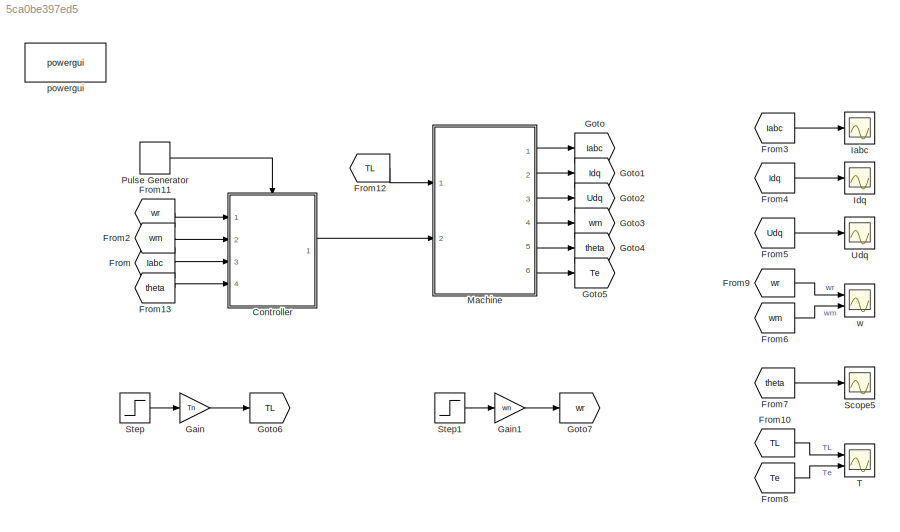
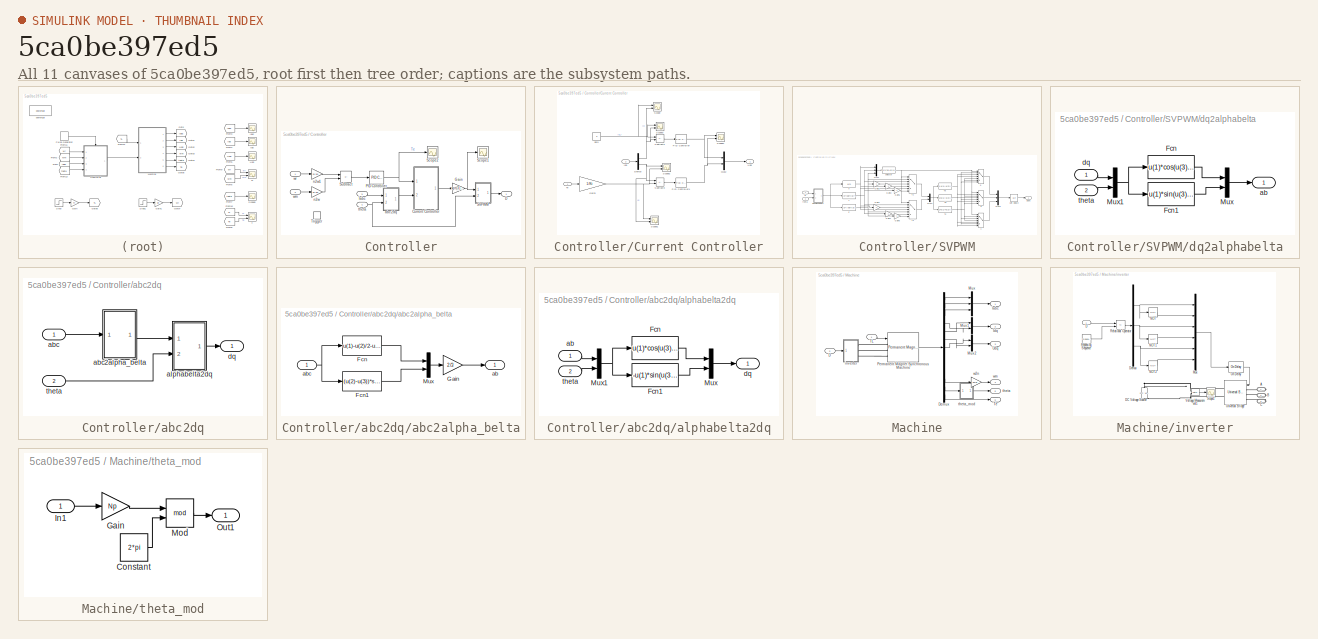
[diagram: thumbnail index - all 11 canvases of the model, root first then tree order]
MODEL slx_5ca0be397ed5
KIND model
CONFIG AbsTol = auto
CONFIG EnableMultiTasking = off
CONFIG FixedStep = auto
CONFIG MaxStep = 1e-6
CONFIG MinStep = auto
CONFIG RelTol = 1e-3
CONFIG SampleTimeConstraint = Unconstrained
CONFIG SolverName = ode45
CONFIG StartTime = 0.0
CONFIG StopTime = 1
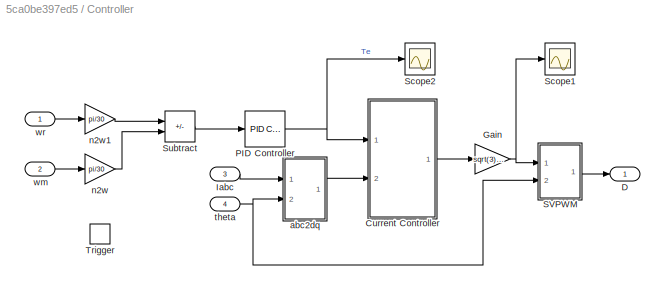
BLOCK [SubSystem] Controller
  Ports = [4, 1, 0, 1]
  RequestExecContextInheritance = off
  TreatAsAtomicUnit = on
BLOCK [SubSystem] Controller/Current Controller
  Ports = [2, 1]
  RequestExecContextInheritance = off
BLOCK [Demux] Controller/Current Controller/Demux
  Outputs = 2
  Ports = [1, 2]
BLOCK [Gain] Controller/Current Controller/Gain3
  Gain = 1/Kt
BLOCK [Inport] Controller/Current Controller/Idq
  Port = 2
BLOCK [Mux] Controller/Current Controller/Mux2
  DisplayOption = bar
  Inputs = 2
  Ports = [2, 1]
BLOCK [Reference] Controller/Current Controller/PID Controller  REF=pid_lib/PID Controller
  Ports = [1, 1]
  SourceBlock = pid_lib/PID Controller
  SourceProductBaseCode = SL
  SourceType = PID 1dof
BLOCK [Reference] Controller/Current Controller/PID Controller1  REF=pid_lib/PID Controller
  Ports = [1, 1]
  SourceBlock = pid_lib/PID Controller
  SourceProductBaseCode = SL
  SourceType = PID 1dof
BLOCK [Scope] Controller/Current Controller/Scope
  Floating = off
  NumInputPorts = 2
  Ports = [2]
  ScopeSpecificationString = Simulink.scopes.TimeScopeBlockCfg('CurrentConfiguration', extmgr.ConfigurationSet(extmgr.Configuration('Core','General UI',true),extmgr.Configuration('Core','Source UI',true),extmgr.Configuration('Sources','WiredSimulink',true,'DataLoggingVariableName','ScopeData7'),extmgr.Configuration('Visuals','Time Domain',true,'SerializedDisplays',{struct('MinYLimReal','-1.29966','MaxYLimReal','1.31839','YLab...<+1582ch>
BLOCK [Scope] Controller/Current Controller/Scope1
  Floating = off
  NumInputPorts = 2
  Ports = [2]
  ScopeSpecificationString = Simulink.scopes.TimeScopeBlockCfg('CurrentConfiguration', extmgr.ConfigurationSet(extmgr.Configuration('Core','General UI',true),extmgr.Configuration('Core','Source UI',true),extmgr.Configuration('Sources','WiredSimulink',true,'DataLoggingVariableName','ScopeData8'),extmgr.Configuration('Visuals','Time Domain',true,'SerializedDisplays',{struct('MinYLimReal','-0.53132','MaxYLimReal','4.54088','YLab...<+1516ch>
BLOCK [Scope] Controller/Current Controller/Scope2
  Floating = off
  NumInputPorts = 2
  Ports = [2]
  ScopeSpecificationString = Simulink.scopes.TimeScopeBlockCfg('CurrentConfiguration', extmgr.ConfigurationSet(extmgr.Configuration('Core','General UI',true),extmgr.Configuration('Core','Source UI',true),extmgr.Configuration('Sources','WiredSimulink',true,'DataLoggingVariableName','ScopeData1'),extmgr.Configuration('Visuals','Time Domain',true,'SerializedDisplays',{struct('MinYLimReal','-0.46814','MaxYLimReal','4.0084','YLabe...<+1385ch>
BLOCK [Scope] Controller/Current Controller/Scope3
  Floating = off
  NumInputPorts = 2
  Ports = [2]
  ScopeSpecificationString = Simulink.scopes.TimeScopeBlockCfg('CurrentConfiguration', extmgr.ConfigurationSet(extmgr.Configuration('Core','General UI',true),extmgr.Configuration('Core','Source UI',true),extmgr.Configuration('Sources','WiredSimulink',true,'DataLoggingVariableName','ScopeData2'),extmgr.Configuration('Visuals','Time Domain',true,'SerializedDisplays',{struct('MinYLimReal','-1.15387','MaxYLimReal','1.22403','YLab...<+1392ch>
BLOCK [Scope] Controller/Current Controller/Scope4
  Floating = off
  NumInputPorts = 2
  Ports = [2]
  ScopeSpecificationString = Simulink.scopes.TimeScopeBlockCfg('CurrentConfiguration', extmgr.ConfigurationSet(extmgr.Configuration('Core','General UI',true),extmgr.Configuration('Core','Source UI',true),extmgr.Configuration('Sources','WiredSimulink',true,'DataLoggingVariableName','ScopeData3'),extmgr.Configuration('Visuals','Time Domain',true,'SerializedDisplays',{struct('MinYLimReal','-233.56831','MaxYLimReal','483.02584','...<+1478ch>
BLOCK [Sum] Controller/Current Controller/Subtract2
  IconShape = rectangular
  Inputs = +-
  Ports = [2, 1]
BLOCK [Sum] Controller/Current Controller/Subtract3
  IconShape = rectangular
  Inputs = -+
  Ports = [2, 1]
BLOCK [Inport] Controller/Current Controller/Te
BLOCK [Outport] Controller/Current Controller/Udq
  VectorParamsAs1DForOutWhenUnconnected = off
BLOCK [Constant] Controller/Current Controller/Zero
  Value = 0
BLOCK [Outport] Controller/D
  VectorParamsAs1DForOutWhenUnconnected = off
BLOCK [Gain] Controller/Gain
  Gain = sqrt(3)/Udc
BLOCK [Inport] Controller/Iabc
  Port = 3
BLOCK [Reference] Controller/PID Controller  REF=pid_lib/PID Controller
  Ports = [1, 1]
  SourceBlock = pid_lib/PID Controller
  SourceProductBaseCode = SL
  SourceType = PID 1dof
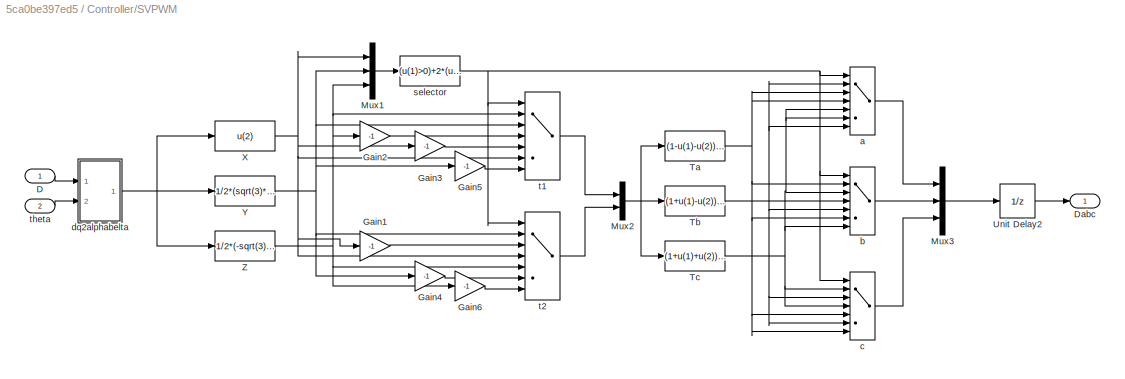
BLOCK [SubSystem] Controller/SVPWM
  Ports = [2, 1]
  RequestExecContextInheritance = off
BLOCK [Inport] Controller/SVPWM/D
BLOCK [Outport] Controller/SVPWM/Dabc
  VectorParamsAs1DForOutWhenUnconnected = off
BLOCK [Gain] Controller/SVPWM/Gain1
  Gain = -1
BLOCK [Gain] Controller/SVPWM/Gain2
  Gain = -1
BLOCK [Gain] Controller/SVPWM/Gain3
  Gain = -1
BLOCK [Gain] Controller/SVPWM/Gain4
  Gain = -1
BLOCK [Gain] Controller/SVPWM/Gain5
  Gain = -1
BLOCK [Gain] Controller/SVPWM/Gain6
  Gain = -1
BLOCK [Mux] Controller/SVPWM/Mux1
  DisplayOption = bar
  Inputs = 3
  Ports = [3, 1]
BLOCK [Mux] Controller/SVPWM/Mux2
  DisplayOption = bar
  Inputs = 2
  Ports = [2, 1]
BLOCK [Mux] Controller/SVPWM/Mux3
  DisplayOption = bar
  Inputs = 3
  Ports = [3, 1]
BLOCK [Fcn] Controller/SVPWM/Ta
  Expr = (1-u(1)-u(2))/2
BLOCK [Fcn] Controller/SVPWM/Tb
  Expr = (1+u(1)-u(2))/2
BLOCK [Fcn] Controller/SVPWM/Tc
  Expr = (1+u(1)+u(2))/2
BLOCK [UnitDelay] Controller/SVPWM/Unit Delay2
  HasFrameUpgradeWarning = on
  SampleTime = -1
BLOCK [Fcn] Controller/SVPWM/X
  Expr = u(2)
BLOCK [Fcn] Controller/SVPWM/Y
  Expr = 1/2*(sqrt(3)*u(1)+u(2))
BLOCK [Fcn] Controller/SVPWM/Z
  Expr = 1/2*(-sqrt(3)*u(1)+u(2))
BLOCK [MultiPortSwitch] Controller/SVPWM/a
  InputSameDT = off
  Inputs = 6
  Ports = [7, 1]
  SaturateOnIntegerOverflow = off
BLOCK [MultiPortSwitch] Controller/SVPWM/b
  InputSameDT = off
  Inputs = 6
  Ports = [7, 1]
  SaturateOnIntegerOverflow = off
BLOCK [MultiPortSwitch] Controller/SVPWM/c
  InputSameDT = off
  Inputs = 6
  Ports = [7, 1]
  SaturateOnIntegerOverflow = off
BLOCK [SubSystem] Controller/SVPWM/dq2alphabelta
  Ports = [2, 1]
  RequestExecContextInheritance = off
BLOCK [Fcn] Controller/SVPWM/dq2alphabelta/Fcn
  Expr = u(1)*cos(u(3))-u(2)*sin(u(3))
BLOCK [Fcn] Controller/SVPWM/dq2alphabelta/Fcn1
  Expr = u(1)*sin(u(3))+u(2)*cos(u(3))
BLOCK [Mux] Controller/SVPWM/dq2alphabelta/Mux
  DisplayOption = bar
  Inputs = 2
  Ports = [2, 1]
BLOCK [Mux] Controller/SVPWM/dq2alphabelta/Mux1
  DisplayOption = bar
  Inputs = 2
  Ports = [2, 1]
BLOCK [Outport] Controller/SVPWM/dq2alphabelta/ab
  VectorParamsAs1DForOutWhenUnconnected = off
BLOCK [Inport] Controller/SVPWM/dq2alphabelta/dq
BLOCK [Inport] Controller/SVPWM/dq2alphabelta/theta
  Port = 2
BLOCK [Fcn] Controller/SVPWM/selector
  Expr = (u(1)>0)+2*(u(3)<=0)+4*(u(2)<=0)
BLOCK [MultiPortSwitch] Controller/SVPWM/t1
  InputSameDT = off
  Inputs = 6
  Ports = [7, 1]
  SaturateOnIntegerOverflow = off
BLOCK [MultiPortSwitch] Controller/SVPWM/t2
  InputSameDT = off
  Inputs = 6
  Ports = [7, 1]
  SaturateOnIntegerOverflow = off
BLOCK [Inport] Controller/SVPWM/theta
  Port = 2
BLOCK [Scope] Controller/Scope1
  Floating = off
  NumInputPorts = 1
  Ports = [1]
  ScopeSpecificationString = Simulink.scopes.TimeScopeBlockCfg('CurrentConfiguration', extmgr.ConfigurationSet(extmgr.Configuration('Core','General UI',true),extmgr.Configuration('Core','Source UI',true),extmgr.Configuration('Sources','WiredSimulink',true,'DataLoggingVariableName','ScopeData3'),extmgr.Configuration('Visuals','Time Domain',true,'SerializedDisplays',{struct('MinYLimReal','-0.74917','MaxYLimReal','1.54931','YLab...<+1477ch>
BLOCK [Scope] Controller/Scope2
  Floating = off
  NumInputPorts = 1
  Ports = [1]
  ScopeSpecificationString = Simulink.scopes.TimeScopeBlockCfg('CurrentConfiguration', extmgr.ConfigurationSet(extmgr.Configuration('Core','General UI',true),extmgr.Configuration('Core','Source UI',true),extmgr.Configuration('Sources','WiredSimulink',true,'DataLoggingVariableName','ScopeData1'),extmgr.Configuration('Visuals','Time Domain',true,'SerializedDisplays',{struct('MinYLimReal','-1.36016','MaxYLimReal','11.92863','YLa...<+1467ch>
BLOCK [Sum] Controller/Subtract
  IconShape = rectangular
  Inputs = +-
  Ports = [2, 1]
BLOCK [TriggerPort] Controller/Trigger
  Ports = []
  StatesWhenEnabling = held
  VariantControl = Variant
BLOCK [SubSystem] Controller/abc2dq
  Ports = [2, 1]
  RequestExecContextInheritance = off
BLOCK [Inport] Controller/abc2dq/abc
BLOCK [SubSystem] Controller/abc2dq/abc2alpha_belta
  Ports = [1, 1]
  RequestExecContextInheritance = off
BLOCK [Fcn] Controller/abc2dq/abc2alpha_belta/Fcn
  Expr = u(1)-u(2)/2-u(3)/2
BLOCK [Fcn] Controller/abc2dq/abc2alpha_belta/Fcn1
  Expr = (u(2)-u(3))*sqrt(3)/2
BLOCK [Gain] Controller/abc2dq/abc2alpha_belta/Gain
  Gain = 2/3
BLOCK [Mux] Controller/abc2dq/abc2alpha_belta/Mux
  DisplayOption = bar
  Inputs = 2
  Ports = [2, 1]
BLOCK [Outport] Controller/abc2dq/abc2alpha_belta/ab
  VectorParamsAs1DForOutWhenUnconnected = off
BLOCK [Inport] Controller/abc2dq/abc2alpha_belta/abc
BLOCK [SubSystem] Controller/abc2dq/alphabelta2dq
  Ports = [2, 1]
  RequestExecContextInheritance = off
BLOCK [Fcn] Controller/abc2dq/alphabelta2dq/Fcn
  Expr = u(1)*cos(u(3))+u(2)*sin(u(3))
BLOCK [Fcn] Controller/abc2dq/alphabelta2dq/Fcn1
  Expr = -u(1)*sin(u(3))+u(2)*cos(u(3))
BLOCK [Mux] Controller/abc2dq/alphabelta2dq/Mux
  DisplayOption = bar
  Inputs = 2
  Ports = [2, 1]
BLOCK [Mux] Controller/abc2dq/alphabelta2dq/Mux1
  DisplayOption = bar
  Inputs = 2
  Ports = [2, 1]
BLOCK [Inport] Controller/abc2dq/alphabelta2dq/ab
BLOCK [Outport] Controller/abc2dq/alphabelta2dq/dq
  VectorParamsAs1DForOutWhenUnconnected = off
BLOCK [Inport] Controller/abc2dq/alphabelta2dq/theta
  Port = 2
BLOCK [Outport] Controller/abc2dq/dq
  VectorParamsAs1DForOutWhenUnconnected = off
BLOCK [Inport] Controller/abc2dq/theta
  Port = 2
BLOCK [Gain] Controller/n2w
  Gain = pi/30
BLOCK [Gain] Controller/n2w1
  Gain = pi/30
BLOCK [Inport] Controller/theta
  Port = 4
BLOCK [Inport] Controller/wm
  Port = 2
BLOCK [Inport] Controller/wr
BLOCK [From] From
  GotoTag = Iabc
BLOCK [From] From10
  GotoTag = TL
  TagVisibility = global
BLOCK [From] From11
  GotoTag = wr
  TagVisibility = global
BLOCK [From] From12
  GotoTag = TL
  TagVisibility = global
BLOCK [From] From13
  GotoTag = theta
BLOCK [From] From2
  GotoTag = wm
BLOCK [From] From3
  GotoTag = Iabc
BLOCK [From] From4
  GotoTag = Idq
BLOCK [From] From5
  GotoTag = Udq
BLOCK [From] From6
  GotoTag = wm
BLOCK [From] From7
  GotoTag = theta
BLOCK [From] From8
  GotoTag = Te
BLOCK [From] From9
  GotoTag = wr
  TagVisibility = global
BLOCK [Gain] Gain
  Gain = Tn
BLOCK [Gain] Gain1
  Gain = wn
BLOCK [Goto] Goto
  GotoTag = Iabc
BLOCK [Goto] Goto1
  GotoTag = Idq
BLOCK [Goto] Goto2
  GotoTag = Udq
BLOCK [Goto] Goto3
  GotoTag = wm
BLOCK [Goto] Goto4
  GotoTag = theta
BLOCK [Goto] Goto5
  GotoTag = Te
BLOCK [Goto] Goto6
  GotoTag = TL
  TagVisibility = global
BLOCK [Goto] Goto7
  GotoTag = wr
  TagVisibility = global
BLOCK [Scope] Iabc
  Floating = off
  NumInputPorts = 1
  Ports = [1]
  ScopeSpecificationString = Simulink.scopes.TimeScopeBlockCfg('CurrentConfiguration', extmgr.ConfigurationSet(extmgr.Configuration('Core','General UI',true),extmgr.Configuration('Core','Source UI',true),extmgr.Configuration('Sources','WiredSimulink',true),extmgr.Configuration('Visuals','Time Domain',true,'SerializedDisplays',{struct('MinYLimReal','-3.48459','MaxYLimReal','3.48038','YLabelReal','','MinYLimMag','0.00000','MaxY...<+1459ch>
BLOCK [Scope] Idq
  Floating = off
  NumInputPorts = 1
  Ports = [1]
  ScopeSpecificationString = Simulink.scopes.TimeScopeBlockCfg('CurrentConfiguration', extmgr.ConfigurationSet(extmgr.Configuration('Core','General UI',true),extmgr.Configuration('Core','Source UI',true),extmgr.Configuration('Sources','WiredSimulink',true,'DataLoggingVariableName','ScopeData1'),extmgr.Configuration('Visuals','Time Domain',true,'SerializedDisplays',{struct('MinYLimReal','-0.03243','MaxYLimReal','0.02372','YLab...<+1545ch>
BLOCK [SubSystem] Machine
  Ports = [2, 6]
  RequestExecContextInheritance = off
BLOCK [Inport] Machine/D
  Port = 2
BLOCK [Demux] Machine/Demux
  Outputs = 13
  Ports = [1, 13]
BLOCK [Outport] Machine/Iabc
  VectorParamsAs1DForOutWhenUnconnected = off
BLOCK [Outport] Machine/Idq
  Port = 2
  VectorParamsAs1DForOutWhenUnconnected = off
BLOCK [Mux] Machine/Mux
  DisplayOption = bar
  Inputs = 3
  Ports = [3, 1]
BLOCK [Mux] Machine/Mux1
  DisplayOption = bar
  Inputs = 2
  Ports = [2, 1]
BLOCK [Mux] Machine/Mux2
  DisplayOption = bar
  Inputs = 2
  Ports = [2, 1]
BLOCK [Reference] Machine/Permanent Magnet Synchronous Machine  REF=powerlib/Machines/Permanent Magnet
Synchronous Machine
  Ports = [1, 1, 0, 0, 0, 3]
  SourceBlock = powerlib/Machines/Permanent Magnet\nSynchronous Machine
  SourceProductBaseCode = PS
  SourceType = Permanent Magnet Synchronous Machine
BLOCK [Inport] Machine/TL
BLOCK [Outport] Machine/Te
  Port = 6
  VectorParamsAs1DForOutWhenUnconnected = off
BLOCK [Outport] Machine/Udq
  Port = 3
  VectorParamsAs1DForOutWhenUnconnected = off
BLOCK [SubSystem] Machine/inverter
  Ports = [1, 0, 0, 0, 0, 0, 3]
  RequestExecContextInheritance = off
BLOCK [PMIOPort] Machine/inverter/A
  Side = Right
BLOCK [PMIOPort] Machine/inverter/B
  Port = 2
  Side = Right
BLOCK [PMIOPort] Machine/inverter/C
  Port = 3
  Side = Right
BLOCK [Inport] Machine/inverter/D
BLOCK [Reference] Machine/inverter/DC Voltage Source  REF=powerlib/Electrical
Sources/DC Voltage Source
  NameLocation = right
  Ports = [0, 0, 0, 0, 0, 1, 1]
  SourceBlock = powerlib/Electrical\nSources/DC Voltage Source
  SourceProductBaseCode = PS
  SourceType = DC Voltage Source
BLOCK [Demux] Machine/inverter/Demux
  Outputs = 3
  Ports = [1, 3]
BLOCK [Mux] Machine/inverter/Mux
  DisplayOption = bar
  Inputs = 6
  Ports = [6, 1]
BLOCK [Logic] Machine/inverter/NOT
  AllPortsSameDT = off
  IconShape = distinctive
  Operator = NOT
  OutDataTypeStr = boolean
  Ports = [1, 1]
BLOCK [Logic] Machine/inverter/NOT1
  AllPortsSameDT = off
  IconShape = distinctive
  Operator = NOT
  OutDataTypeStr = boolean
  Ports = [1, 1]
BLOCK [Logic] Machine/inverter/NOT2
  AllPortsSameDT = off
  IconShape = distinctive
  Operator = NOT
  OutDataTypeStr = boolean
  Ports = [1, 1]
BLOCK [Reference] Machine/inverter/On Delay  REF=powerlib_meascontrol/Logic/On Delay
  Ports = [1, 1]
  SourceBlock = powerlib_meascontrol/Logic/On Delay
  SourceProductBaseCode = PS
  SourceType = On/Off Delay
BLOCK [RelationalOperator] Machine/inverter/Relational Operator
  InputSameDT = off
  Operator = <=
  OutDataTypeStr = boolean
  Ports = [2, 1]
  RndMeth = Simplest
BLOCK [Reference] Machine/inverter/Repeating Sequence  REF=simulink/Sources/Repeating
Sequence
  Ports = [0, 1]
  SourceBlock = simulink/Sources/Repeating\nSequence
  SourceProductBaseCode = SL
  SourceType = Repeating table
BLOCK [Scope] Machine/inverter/Scope1
  Floating = off
  NumInputPorts = 1
  Ports = [1]
  ScopeSpecificationString = Simulink.scopes.TimeScopeBlockCfg('CurrentConfiguration', extmgr.ConfigurationSet(extmgr.Configuration('Core','General UI',true),extmgr.Configuration('Core','Source UI',true),extmgr.Configuration('Sources','WiredSimulink',true,'DataLoggingVariableName','ScopeData1'),extmgr.Configuration('Visuals','Time Domain',true,'SerializedDisplays',{struct('MinYLimReal','-31.67772','MaxYLimReal','601.21776','Y...<+1489ch>
BLOCK [Reference] Machine/inverter/Universal Bridge  REF=powerlib/Power
Electronics/Universal Bridge
  Ports = [1, 0, 0, 0, 0, 3, 2]
  SourceBlock = powerlib/Power\nElectronics/Universal Bridge
  SourceProductBaseCode = PS
  SourceType = Universal Bridge
BLOCK [Reference] Machine/inverter/Voltage Measurement1  REF=powerlib/Measurements/Voltage Measurement
  Ports = [0, 1, 0, 0, 0, 2]
  SourceBlock = powerlib/Measurements/Voltage Measurement
  SourceProductBaseCode = PS
  SourceType = Voltage Measurement
  UserDataPersistent = on
BLOCK [Outport] Machine/theta
  Port = 5
  VectorParamsAs1DForOutWhenUnconnected = off
BLOCK [SubSystem] Machine/theta_mod
  Ports = [1, 1]
  RequestExecContextInheritance = off
BLOCK [Constant] Machine/theta_mod/Constant
  Value = 2*pi
BLOCK [Gain] Machine/theta_mod/Gain
  Gain = Np
BLOCK [Inport] Machine/theta_mod/In1
BLOCK [Math] Machine/theta_mod/Mod
  Operator = mod
  Ports = [2, 1]
  SignedPower = on
BLOCK [Outport] Machine/theta_mod/Out1
  VectorParamsAs1DForOutWhenUnconnected = off
BLOCK [Gain] Machine/w2n
  Gain = 30/pi
BLOCK [Outport] Machine/wm
  Port = 4
  VectorParamsAs1DForOutWhenUnconnected = off
BLOCK [DiscretePulseGenerator] Pulse Generator
  Period = Ts
  Ports = [0, 1]
  PulseType = Time based
  PulseWidth = 50
BLOCK [Scope] Scope5
  Floating = off
  NumInputPorts = 1
  Ports = [1]
  ScopeSpecificationString = Simulink.scopes.TimeScopeBlockCfg('CurrentConfiguration', extmgr.ConfigurationSet(extmgr.Configuration('Core','General UI',true),extmgr.Configuration('Core','Source UI',true),extmgr.Configuration('Sources','WiredSimulink',true,'DataLoggingVariableName','ScopeData6'),extmgr.Configuration('Visuals','Time Domain',true,'SerializedDisplays',{struct('MinYLimReal','-0.7854','MaxYLimReal','7.06858','YLabe...<+1466ch>
BLOCK [Step] Step
  SampleTime = 0
  Time = 0.5
BLOCK [Step] Step1
  SampleTime = 0
  Time = 0
BLOCK [Scope] T
  Floating = off
  NumInputPorts = 2
  Ports = [2]
  ScopeSpecificationString = Simulink.scopes.TimeScopeBlockCfg('CurrentConfiguration', extmgr.ConfigurationSet(extmgr.Configuration('Core','General UI',true),extmgr.Configuration('Core','Source UI',true),extmgr.Configuration('Sources','WiredSimulink',true,'DataLoggingVariableName','ScopeData5'),extmgr.Configuration('Visuals','Time Domain',true,'SerializedDisplays',{struct('MinYLimReal','-17.09595','MaxYLimReal','15.58491','YL...<+1568ch>
BLOCK [Scope] Udq
  Floating = off
  NumInputPorts = 1
  Ports = [1]
  ScopeSpecificationString = Simulink.scopes.TimeScopeBlockCfg('CurrentConfiguration', extmgr.ConfigurationSet(extmgr.Configuration('Core','General UI',true),extmgr.Configuration('Core','Source UI',true),extmgr.Configuration('Sources','WiredSimulink',true,'DataLoggingVariableName','ScopeData2'),extmgr.Configuration('Visuals','Time Domain',true,'SerializedDisplays',{struct('MinYLimReal','-415.6232','MaxYLimReal','419.10198','Y...<+1530ch>
BLOCK [Reference] powergui  REF=powerlib/powergui
  Ports = []
  Priority = 1
  SourceBlock = powerlib/powergui
  SourceProductBaseCode = PS
  SourceType = PSB option menu block
BLOCK [Scope] w
  Floating = off
  NumInputPorts = 2
  Ports = [2]
  ScopeSpecificationString = Simulink.scopes.TimeScopeBlockCfg('CurrentConfiguration', extmgr.ConfigurationSet(extmgr.Configuration('Core','General UI',true),extmgr.Configuration('Core','Source UI',true),extmgr.Configuration('Sources','WiredSimulink',true,'DataLoggingVariableName','ScopeData3'),extmgr.Configuration('Visuals','Time Domain',true,'SerializedDisplays',{struct('MinYLimReal','-1.83778','MaxYLimReal','16.54001','YLa...<+1590ch>
NET Controller/Current Controller/Demux:1 -> Controller/Current Controller/Scope3:2, Controller/Current Controller/Scope:2, Controller/Current Controller/Subtract2:2
NET Controller/Current Controller/Demux:2 -> Controller/Current Controller/Scope1:2, Controller/Current Controller/Scope2:1, Controller/Current Controller/Subtract3:1
NET Controller/Current Controller/Gain3:1 -> Controller/Current Controller/Scope1:1, Controller/Current Controller/Scope2:2, Controller/Current Controller/Subtract3:2
LINE Controller/Current Controller/Idq:1 -> Controller/Current Controller/Demux:1
LINE Controller/Current Controller/Mux2:1 -> Controller/Current Controller/Udq:1
NET Controller/Current Controller/PID Controller1:1 -> Controller/Current Controller/Mux2:2, Controller/Current Controller/Scope4:2
NET Controller/Current Controller/PID Controller:1 -> Controller/Current Controller/Mux2:1, Controller/Current Controller/Scope4:1
LINE Controller/Current Controller/Subtract2:1 -> Controller/Current Controller/PID Controller:1
LINE Controller/Current Controller/Subtract3:1 -> Controller/Current Controller/PID Controller1:1
LINE Controller/Current Controller/Te:1 -> Controller/Current Controller/Gain3:1
NET Controller/Current Controller/Zero:1 -> Controller/Current Controller/Scope3:1, Controller/Current Controller/Scope:1, Controller/Current Controller/Subtract2:1
LINE Controller/Current Controller:1 -> Controller/Gain:1
NET Controller/Gain:1 -> Controller/SVPWM:1, Controller/Scope1:1
LINE Controller/Iabc:1 -> Controller/abc2dq:1
NET Controller/PID Controller:1 -> Controller/Current Controller:1, Controller/Scope2:1
LINE Controller/SVPWM/D:1 -> Controller/SVPWM/dq2alphabelta:1
LINE Controller/SVPWM/Gain1:1 -> Controller/SVPWM/t2:3
LINE Controller/SVPWM/Gain2:1 -> Controller/SVPWM/t1:4
LINE Controller/SVPWM/Gain3:1 -> Controller/SVPWM/t1:5
LINE Controller/SVPWM/Gain4:1 -> Controller/SVPWM/t2:6
LINE Controller/SVPWM/Gain5:1 -> Controller/SVPWM/t1:7
LINE Controller/SVPWM/Gain6:1 -> Controller/SVPWM/t2:7
LINE Controller/SVPWM/Mux1:1 -> Controller/SVPWM/selector:1
NET Controller/SVPWM/Mux2:1 -> Controller/SVPWM/Ta:1, Controller/SVPWM/Tb:1, Controller/SVPWM/Tc:1
LINE Controller/SVPWM/Mux3:1 -> Controller/SVPWM/Unit Delay2:1
NET Controller/SVPWM/Ta:1 -> Controller/SVPWM/a:3, Controller/SVPWM/a:4, Controller/SVPWM/b:2, Controller/SVPWM/b:6, Controller/SVPWM/c:5, Controller/SVPWM/c:7
NET Controller/SVPWM/Tb:1 -> Controller/SVPWM/a:2, Controller/SVPWM/a:7, Controller/SVPWM/b:4, Controller/SVPWM/b:5, Controller/SVPWM/c:3, Controller/SVPWM/c:6
NET Controller/SVPWM/Tc:1 -> Controller/SVPWM/a:5, Controller/SVPWM/a:6, Controller/SVPWM/b:3, Controller/SVPWM/b:7, Controller/SVPWM/c:2, Controller/SVPWM/c:4
LINE Controller/SVPWM/Unit Delay2:1 -> Controller/SVPWM/Dabc:1
NET Controller/SVPWM/X:1 -> Controller/SVPWM/Gain1:1, Controller/SVPWM/Gain3:1, Controller/SVPWM/Mux1:1, Controller/SVPWM/t1:6, Controller/SVPWM/t2:4
NET Controller/SVPWM/Y:1 -> Controller/SVPWM/Gain4:1, Controller/SVPWM/Gain5:1, Controller/SVPWM/Mux1:2, Controller/SVPWM/t1:3, Controller/SVPWM/t2:2
NET Controller/SVPWM/Z:1 -> Controller/SVPWM/Gain2:1, Controller/SVPWM/Gain6:1, Controller/SVPWM/Mux1:3, Controller/SVPWM/t1:2, Controller/SVPWM/t2:5
LINE Controller/SVPWM/a:1 -> Controller/SVPWM/Mux3:1
LINE Controller/SVPWM/b:1 -> Controller/SVPWM/Mux3:2
LINE Controller/SVPWM/c:1 -> Controller/SVPWM/Mux3:3
LINE Controller/SVPWM/dq2alphabelta/Fcn1:1 -> Controller/SVPWM/dq2alphabelta/Mux:2
LINE Controller/SVPWM/dq2alphabelta/Fcn:1 -> Controller/SVPWM/dq2alphabelta/Mux:1
NET Controller/SVPWM/dq2alphabelta/Mux1:1 -> Controller/SVPWM/dq2alphabelta/Fcn1:1, Controller/SVPWM/dq2alphabelta/Fcn:1
LINE Controller/SVPWM/dq2alphabelta/Mux:1 -> Controller/SVPWM/dq2alphabelta/ab:1
LINE Controller/SVPWM/dq2alphabelta/dq:1 -> Controller/SVPWM/dq2alphabelta/Mux1:1
LINE Controller/SVPWM/dq2alphabelta/theta:1 -> Controller/SVPWM/dq2alphabelta/Mux1:2
NET Controller/SVPWM/dq2alphabelta:1 -> Controller/SVPWM/X:1, Controller/SVPWM/Y:1, Controller/SVPWM/Z:1
NET Controller/SVPWM/selector:1 -> Controller/SVPWM/a:1, Controller/SVPWM/b:1, Controller/SVPWM/c:1, Controller/SVPWM/t1:1, Controller/SVPWM/t2:1
LINE Controller/SVPWM/t1:1 -> Controller/SVPWM/Mux2:1
LINE Controller/SVPWM/t2:1 -> Controller/SVPWM/Mux2:2
LINE Controller/SVPWM/theta:1 -> Controller/SVPWM/dq2alphabelta:2
LINE Controller/SVPWM:1 -> Controller/D:1
LINE Controller/Subtract:1 -> Controller/PID Controller:1
LINE Controller/abc2dq/abc2alpha_belta/Fcn1:1 -> Controller/abc2dq/abc2alpha_belta/Mux:2
LINE Controller/abc2dq/abc2alpha_belta/Fcn:1 -> Controller/abc2dq/abc2alpha_belta/Mux:1
LINE Controller/abc2dq/abc2alpha_belta/Gain:1 -> Controller/abc2dq/abc2alpha_belta/ab:1
LINE Controller/abc2dq/abc2alpha_belta/Mux:1 -> Controller/abc2dq/abc2alpha_belta/Gain:1
NET Controller/abc2dq/abc2alpha_belta/abc:1 -> Controller/abc2dq/abc2alpha_belta/Fcn1:1, Controller/abc2dq/abc2alpha_belta/Fcn:1
LINE Controller/abc2dq/abc2alpha_belta:1 -> Controller/abc2dq/alphabelta2dq:1
LINE Controller/abc2dq/abc:1 -> Controller/abc2dq/abc2alpha_belta:1
LINE Controller/abc2dq/alphabelta2dq/Fcn1:1 -> Controller/abc2dq/alphabelta2dq/Mux:2
LINE Controller/abc2dq/alphabelta2dq/Fcn:1 -> Controller/abc2dq/alphabelta2dq/Mux:1
NET Controller/abc2dq/alphabelta2dq/Mux1:1 -> Controller/abc2dq/alphabelta2dq/Fcn1:1, Controller/abc2dq/alphabelta2dq/Fcn:1
LINE Controller/abc2dq/alphabelta2dq/Mux:1 -> Controller/abc2dq/alphabelta2dq/dq:1
LINE Controller/abc2dq/alphabelta2dq/ab:1 -> Controller/abc2dq/alphabelta2dq/Mux1:1
LINE Controller/abc2dq/alphabelta2dq/theta:1 -> Controller/abc2dq/alphabelta2dq/Mux1:2
LINE Controller/abc2dq/alphabelta2dq:1 -> Controller/abc2dq/dq:1
LINE Controller/abc2dq/theta:1 -> Controller/abc2dq/alphabelta2dq:2
LINE Controller/abc2dq:1 -> Controller/Current Controller:2
LINE Controller/n2w1:1 -> Controller/Subtract:1
LINE Controller/n2w:1 -> Controller/Subtract:2
NET Controller/theta:1 -> Controller/SVPWM:2, Controller/abc2dq:2
LINE Controller/wm:1 -> Controller/n2w:1
LINE Controller/wr:1 -> Controller/n2w1:1
LINE Controller:1 -> Machine:2
LINE From10:1 -> T:1
LINE From11:1 -> Controller:1
LINE From12:1 -> Machine:1
LINE From13:1 -> Controller:4
LINE From2:1 -> Controller:2
LINE From3:1 -> Iabc:1
LINE From4:1 -> Idq:1
LINE From5:1 -> Udq:1
LINE From6:1 -> w:2
LINE From7:1 -> Scope5:1
LINE From8:1 -> T:2
LINE From9:1 -> w:1
LINE From:1 -> Controller:3
LINE Gain1:1 -> Goto7:1
LINE Gain:1 -> Goto6:1
LINE Machine/D:1 -> Machine/inverter:1
LINE Machine/Demux:1 -> Machine/Mux:1
LINE Machine/Demux:11 -> Machine/w2n:1
LINE Machine/Demux:12 -> Machine/theta_mod:1
LINE Machine/Demux:13 -> Machine/Te:1
LINE Machine/Demux:2 -> Machine/Mux:2
LINE Machine/Demux:3 -> Machine/Mux:3
LINE Machine/Demux:4 -> Machine/Mux1:2
LINE Machine/Demux:5 -> Machine/Mux1:1
LINE Machine/Demux:6 -> Machine/Mux2:2
LINE Machine/Demux:7 -> Machine/Mux2:1
LINE Machine/Mux1:1 -> Machine/Idq:1
LINE Machine/Mux2:1 -> Machine/Udq:1
LINE Machine/Mux:1 -> Machine/Iabc:1
LINE Machine/Permanent Magnet Synchronous Machine:1 -> Machine/Demux:1
LINE Machine/TL:1 -> Machine/Permanent Magnet Synchronous Machine:1
LINE Machine/inverter/D:1 -> Machine/inverter/Relational Operator:1
NET Machine/inverter/Demux:1 -> Machine/inverter/Mux:1, Machine/inverter/NOT:1
NET Machine/inverter/Demux:2 -> Machine/inverter/Mux:3, Machine/inverter/NOT1:1
NET Machine/inverter/Demux:3 -> Machine/inverter/Mux:5, Machine/inverter/NOT2:1
LINE Machine/inverter/Mux:1 -> Machine/inverter/On Delay:1
LINE Machine/inverter/NOT1:1 -> Machine/inverter/Mux:4
LINE Machine/inverter/NOT2:1 -> Machine/inverter/Mux:6
LINE Machine/inverter/NOT:1 -> Machine/inverter/Mux:2
LINE Machine/inverter/On Delay:1 -> Machine/inverter/Universal Bridge:1
LINE Machine/inverter/Relational Operator:1 -> Machine/inverter/Demux:1
LINE Machine/inverter/Repeating Sequence:1 -> Machine/inverter/Relational Operator:2
LINE Machine/inverter/Voltage Measurement1:1 -> Machine/inverter/Scope1:1
LINE Machine/theta_mod/Constant:1 -> Machine/theta_mod/Mod:2
LINE Machine/theta_mod/Gain:1 -> Machine/theta_mod/Mod:1
LINE Machine/theta_mod/In1:1 -> Machine/theta_mod/Gain:1
LINE Machine/theta_mod/Mod:1 -> Machine/theta_mod/Out1:1
LINE Machine/theta_mod:1 -> Machine/theta:1
LINE Machine/w2n:1 -> Machine/wm:1
LINE Machine:1 -> Goto:1
LINE Machine:2 -> Goto1:1
LINE Machine:3 -> Goto2:1
LINE Machine:4 -> Goto3:1
LINE Machine:5 -> Goto4:1
LINE Machine:6 -> Goto5:1
LINE Pulse Generator:1 -> Controller:trigger
LINE Step1:1 -> Gain1:1
LINE Step:1 -> Gain:1
PLINE Machine/Permanent Magnet Synchronous Machine:LConn1 -- Machine/inverter:RConn1
PLINE Machine/Permanent Magnet Synchronous Machine:LConn2 -- Machine/inverter:RConn2
PLINE Machine/Permanent Magnet Synchronous Machine:LConn3 -- Machine/inverter:RConn3
PLINE Machine/inverter/A:RConn1 -- Machine/inverter/Universal Bridge:LConn1
PLINE Machine/inverter/B:RConn1 -- Machine/inverter/Universal Bridge:LConn2
PLINE Machine/inverter/C:RConn1 -- Machine/inverter/Universal Bridge:LConn3
PNET net1: Machine/inverter/DC Voltage Source:LConn1 -- Machine/inverter/Universal Bridge:RConn2 -- Machine/inverter/Voltage Measurement1:LConn2
PNET net2: Machine/inverter/DC Voltage Source:RConn1 -- Machine/inverter/Universal Bridge:RConn1 -- Machine/inverter/Voltage Measurement1:LConn1
note: NET lines group one-source signal fan-out (src -> all destinations, sorted); 1:1 wires keep LINE; PNET lines group multi-terminal physical nets as a canonical sorted terminal list (undirected conserving connections); 2-terminal nets keep the pairwise PLINE form
